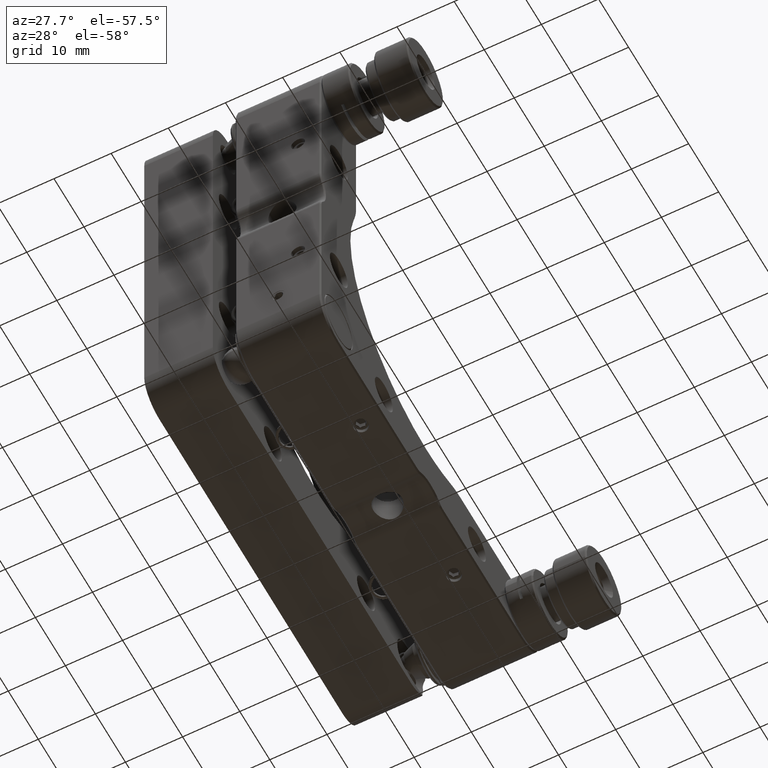
[diagram: clean part render]
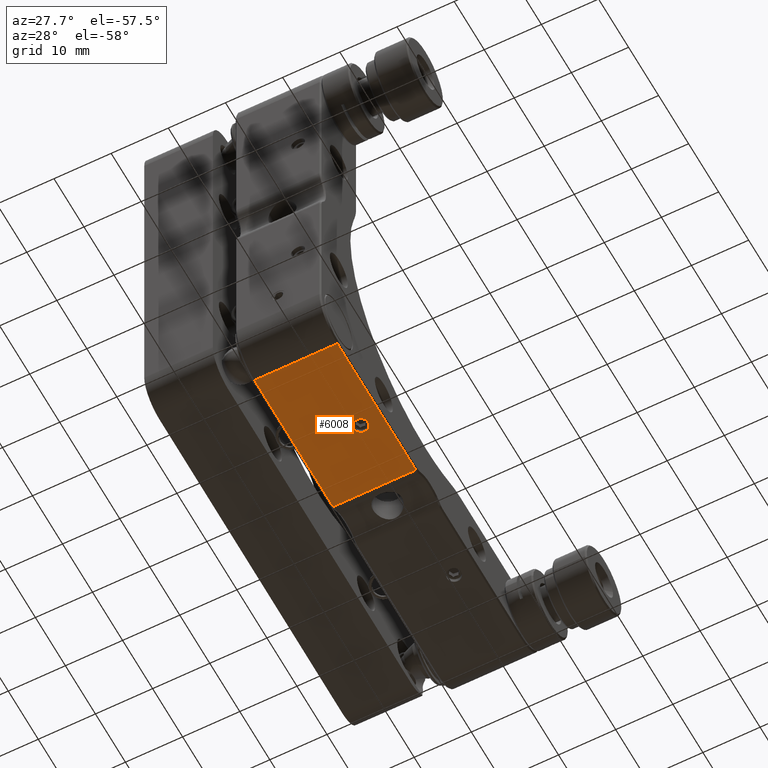
[diagram: same view with one face highlighted and labeled with its STEP entity id]
A machine part, auxiliary view. The second image highlights one B-rep face of the part: STEP entity #6008.
In plain terms, the highlighted planar face has unit normal (0, -0, 1).
Its self-contained STEP definition (entity closure, byte-faithful):
#74 = CARTESIAN_POINT ( 'NONE',  ( -7.249999999999985789, -4.330127018922193649, -36.50000000000000711 ) ) ;
#93 = DIRECTION ( 'NONE',  ( 0.0000000000000000000, 1.000000000000000000, 0.0000000000000000000 ) ) ;
#537 = CARTESIAN_POINT ( 'NONE',  ( 3.499999999999999556, -16.74999999999997158, -36.50000000000000000 ) ) ;
#2044 = EDGE_CURVE ( 'NONE', #18232, #13467, #6639, .T. ) ;
#2046 = EDGE_CURVE ( 'NONE', #13467, #14122, #18583, .T. ) ;
#2581 = CARTESIAN_POINT ( 'NONE',  ( 7.249999999999985789, -30.50000000000001421, -36.50000000000000711 ) ) ;
#2775 = DIRECTION ( 'NONE',  ( 0.0000000000000000000, -9.505334114941409750E-17, 1.000000000000000000 ) ) ;
#2964 = CARTESIAN_POINT ( 'NONE',  ( -7.249999999999985789, -30.50000000000001421, -36.50000000000000711 ) ) ;
#3004 = AXIS2_PLACEMENT_3D ( 'NONE', #14418, #2775, #16188 ) ;
#3132 = CARTESIAN_POINT ( 'NONE',  ( 7.249999999999985789, -30.50000000000001421, -36.50000000000000711 ) ) ;
#3600 = EDGE_LOOP ( 'NONE', ( #6216, #18454 ) ) ;
#4001 = ORIENTED_EDGE ( 'NONE', *, *, #2046, .T. ) ;
#4080 = LINE ( 'NONE', #2581, #6182 ) ;
#4295 = LINE ( 'NONE', #13157, #17211 ) ;
#5162 = CARTESIAN_POINT ( 'NONE',  ( 7.500000000000000000, -30.50000000000001421, -36.50000000000000711 ) ) ;
#5282 = CIRCLE ( 'NONE', #10295, 1.249999999999988898 ) ;
#6008 = ADVANCED_FACE ( 'NONE', ( #9881, #8727 ), #6943, .F. ) ;
#6182 = VECTOR ( 'NONE', #16088, 1000.000000000000000 ) ;
#6216 = ORIENTED_EDGE ( 'NONE', *, *, #11164, .F. ) ;
#6639 = LINE ( 'NONE', #5162, #19241 ) ;
#6943 = PLANE ( 'NONE',  #3004 ) ;
#7058 = ORIENTED_EDGE ( 'NONE', *, *, #17917, .T. ) ;
#7201 = VERTEX_POINT ( 'NONE', #13222 ) ;
#7780 = CIRCLE ( 'NONE', #15008, 1.249999999999988898 ) ;
#8727 = FACE_OUTER_BOUND ( 'NONE', #17441, .T. ) ;
#8927 = EDGE_CURVE ( 'NONE', #14122, #7201, #4295, .T. ) ;
#9210 = VECTOR ( 'NONE', #10911, 1000.000000000000000 ) ;
#9881 = FACE_BOUND ( 'NONE', #3600, .T. ) ;
#10133 = DIRECTION ( 'NONE',  ( -0.0000000000000000000, 1.334402673828313339E-16, -1.000000000000000000 ) ) ;
#10295 = AXIS2_PLACEMENT_3D ( 'NONE', #10782, #10133, #16782 ) ;
#10782 = CARTESIAN_POINT ( 'NONE',  ( 3.499999999999999556, -15.49999999999998401, -36.50000000000000000 ) ) ;
#10911 = DIRECTION ( 'NONE',  ( 0.0000000000000000000, 1.000000000000000000, 9.505334114941409750E-17 ) ) ;
#11164 = EDGE_CURVE ( 'NONE', #12070, #15915, #7780, .T. ) ;
#11897 = EDGE_CURVE ( 'NONE', #15915, #12070, #5282, .T. ) ;
#12070 = VERTEX_POINT ( 'NONE', #13864 ) ;
#13157 = CARTESIAN_POINT ( 'NONE',  ( 7.500000000000000000, -4.330127018922193649, -36.50000000000000711 ) ) ;
#13222 = CARTESIAN_POINT ( 'NONE',  ( 7.249999999999985789, -4.330127018922193649, -36.50000000000000711 ) ) ;
#13467 = VERTEX_POINT ( 'NONE', #2964 ) ;
#13864 = CARTESIAN_POINT ( 'NONE',  ( 3.499999999999999556, -14.24999999999999467, -36.50000000000000000 ) ) ;
#13885 = CARTESIAN_POINT ( 'NONE',  ( 3.499999999999999556, -15.49999999999998401, -36.50000000000000000 ) ) ;
#14122 = VERTEX_POINT ( 'NONE', #74 ) ;
#14418 = CARTESIAN_POINT ( 'NONE',  ( 7.500000000000000000, 36.49999999999999289, -36.50000000000000000 ) ) ;
#15008 = AXIS2_PLACEMENT_3D ( 'NONE', #13885, #15084, #93 ) ;
#15084 = DIRECTION ( 'NONE',  ( -0.0000000000000000000, 1.334402673828313339E-16, -1.000000000000000000 ) ) ;
#15441 = CARTESIAN_POINT ( 'NONE',  ( -7.249999999999985789, 36.49999999999999289, -36.50000000000000000 ) ) ;
#15536 = ORIENTED_EDGE ( 'NONE', *, *, #8927, .T. ) ;
#15915 = VERTEX_POINT ( 'NONE', #537 ) ;
#16088 = DIRECTION ( 'NONE',  ( 0.0000000000000000000, -1.000000000000000000, -9.505334114941409750E-17 ) ) ;
#16188 = DIRECTION ( 'NONE',  ( 0.0000000000000000000, -1.000000000000000000, -9.505334114941409750E-17 ) ) ;
#16516 = ORIENTED_EDGE ( 'NONE', *, *, #2044, .T. ) ;
#16782 = DIRECTION ( 'NONE',  ( 0.0000000000000000000, 1.000000000000000000, 0.0000000000000000000 ) ) ;
#17149 = DIRECTION ( 'NONE',  ( -1.000000000000000000, 0.0000000000000000000, 0.0000000000000000000 ) ) ;
#17211 = VECTOR ( 'NONE', #18946, 1000.000000000000000 ) ;
#17441 = EDGE_LOOP ( 'NONE', ( #16516, #4001, #15536, #7058 ) ) ;
#17917 = EDGE_CURVE ( 'NONE', #7201, #18232, #4080, .T. ) ;
#18232 = VERTEX_POINT ( 'NONE', #3132 ) ;
#18454 = ORIENTED_EDGE ( 'NONE', *, *, #11897, .F. ) ;
#18583 = LINE ( 'NONE', #15441, #9210 ) ;
#18946 = DIRECTION ( 'NONE',  ( 1.000000000000000000, 0.0000000000000000000, 0.0000000000000000000 ) ) ;
#19241 = VECTOR ( 'NONE', #17149, 1000.000000000000000 ) ;